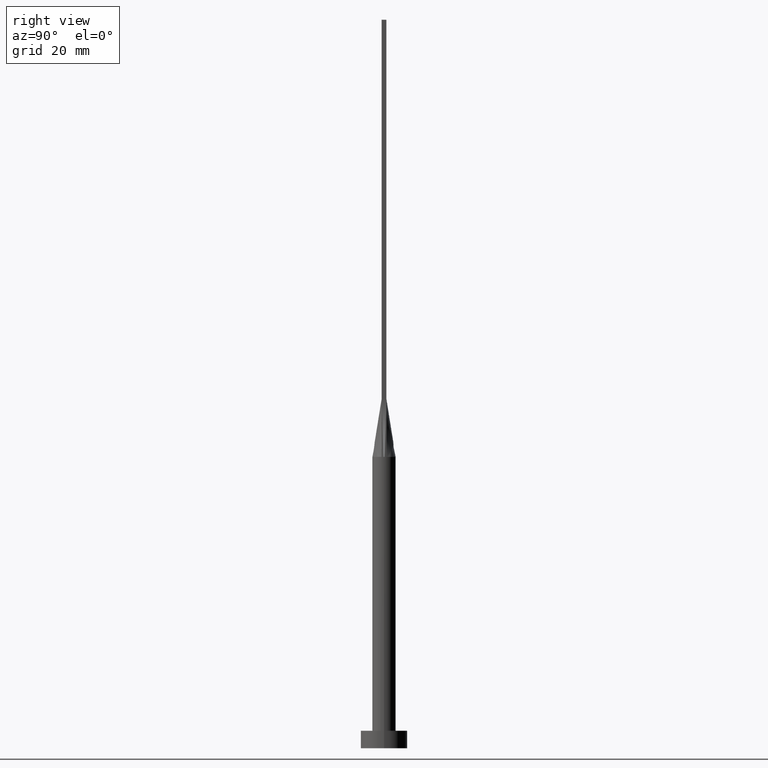
[diagram: clean part render]
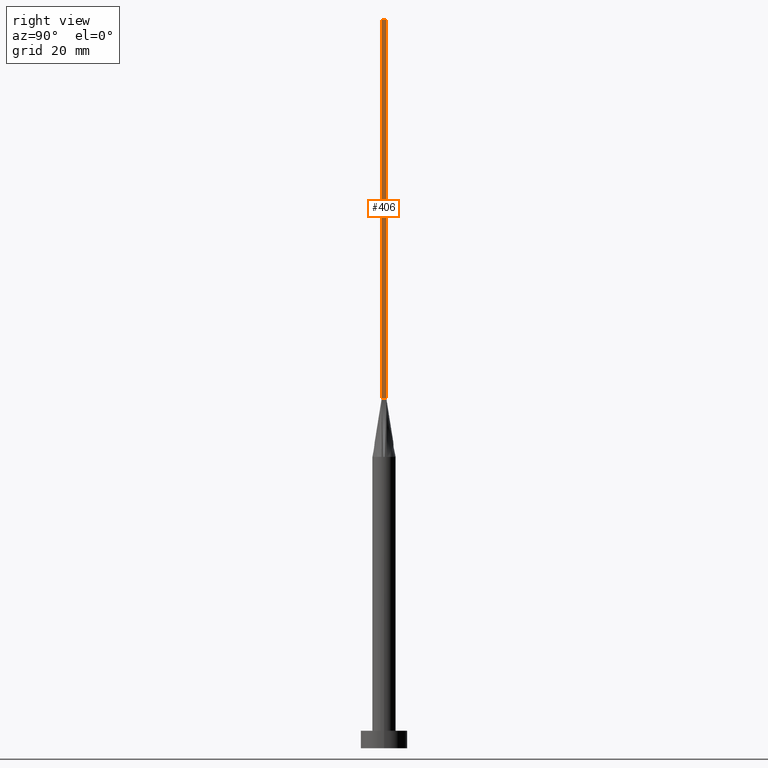
[diagram: same view with one face highlighted and labeled with its STEP entity id]
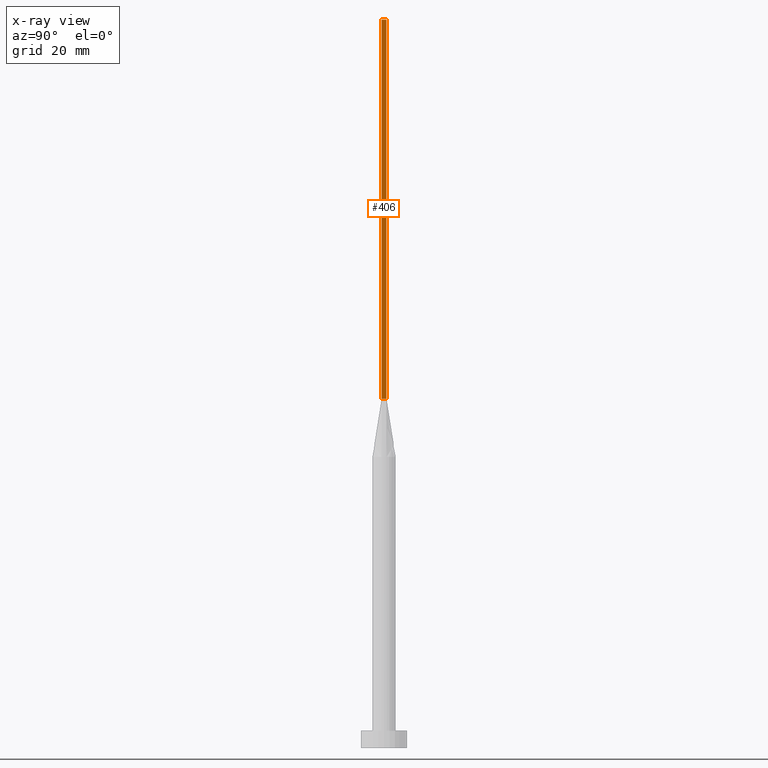
[diagram: x-ray of the same camera — body ghosted, the highlighted face saturated]
A machine part, right view. The second image highlights one B-rep face of the part: STEP entity #406.
The next image is the same camera in x-ray: the body ghosted, the highlighted face saturated — about 0% of this face is hidden behind the body in this view.
In plain terms, the highlighted planar face has unit normal (-1, -0, 0).
Its self-contained STEP definition (entity closure, byte-faithful):
#13 = ORIENTED_EDGE ( 'NONE', *, *, #127, .F. ) ;
#20 = ORIENTED_EDGE ( 'NONE', *, *, #318, .T. ) ;
#26 = VECTOR ( 'NONE', #576, 1000.000000000000000 ) ;
#86 = LINE ( 'NONE', #391, #26 ) ;
#97 = CARTESIAN_POINT ( 'NONE',  ( 1.749999999999999778, 0.4000000000000003553, 125.0000000000000000 ) ) ;
#123 = DIRECTION ( 'NONE',  ( -1.000000000000000000, -2.710505431213761085E-16, 0.000000000000000000 ) ) ;
#127 = EDGE_CURVE ( 'NONE', #335, #341, #135, .T. ) ;
#132 = CARTESIAN_POINT ( 'NONE',  ( 1.750000000000000000, -0.3999999999999996891, 60.00000000000000711 ) ) ;
#133 = DIRECTION ( 'NONE',  ( -2.710505431213761085E-16, 1.000000000000000000, -0.000000000000000000 ) ) ;
#135 = LINE ( 'NONE', #440, #304 ) ;
#144 = LINE ( 'NONE', #97, #393 ) ;
#160 = VERTEX_POINT ( 'NONE', #562 ) ;
#178 = DIRECTION ( 'NONE',  ( 2.710505431213761085E-16, -1.000000000000000000, 0.000000000000000000 ) ) ;
#259 = CARTESIAN_POINT ( 'NONE',  ( 1.750000000000000000, -0.3999999999999996891, 125.0000000000000000 ) ) ;
#261 = FACE_OUTER_BOUND ( 'NONE', #380, .T. ) ;
#274 = LINE ( 'NONE', #533, #469 ) ;
#298 = AXIS2_PLACEMENT_3D ( 'NONE', #532, #123, #178 ) ;
#304 = VECTOR ( 'NONE', #443, 1000.000000000000000 ) ;
#314 = ORIENTED_EDGE ( 'NONE', *, *, #525, .F. ) ;
#318 = EDGE_CURVE ( 'NONE', #335, #410, #86, .T. ) ;
#335 = VERTEX_POINT ( 'NONE', #259 ) ;
#341 = VERTEX_POINT ( 'NONE', #569 ) ;
#380 = EDGE_LOOP ( 'NONE', ( #452, #314, #13, #20 ) ) ;
#391 = CARTESIAN_POINT ( 'NONE',  ( 1.750000000000000000, -0.3999999999999996891, 125.0000000000000000 ) ) ;
#393 = VECTOR ( 'NONE', #480, 1000.000000000000000 ) ;
#406 = ADVANCED_FACE ( 'NONE', ( #261 ), #479, .F. ) ;
#410 = VERTEX_POINT ( 'NONE', #132 ) ;
#440 = CARTESIAN_POINT ( 'NONE',  ( 1.750000000000000000, -0.3999999999999996891, 125.0000000000000000 ) ) ;
#443 = DIRECTION ( 'NONE',  ( -2.710505431213761085E-16, 1.000000000000000000, 0.000000000000000000 ) ) ;
#452 = ORIENTED_EDGE ( 'NONE', *, *, #538, .T. ) ;
#469 = VECTOR ( 'NONE', #133, 1000.000000000000000 ) ;
#479 = PLANE ( 'NONE',  #298 ) ;
#480 = DIRECTION ( 'NONE',  ( -0.000000000000000000, -0.000000000000000000, -1.000000000000000000 ) ) ;
#525 = EDGE_CURVE ( 'NONE', #341, #160, #144, .T. ) ;
#532 = CARTESIAN_POINT ( 'NONE',  ( 1.750000000000000000, -0.3999999999999996891, 125.0000000000000000 ) ) ;
#533 = CARTESIAN_POINT ( 'NONE',  ( 1.749999999999999778, 0.4000000000000003553, 60.00000000000000711 ) ) ;
#538 = EDGE_CURVE ( 'NONE', #410, #160, #274, .T. ) ;
#562 = CARTESIAN_POINT ( 'NONE',  ( 1.749999999999999778, 0.4000000000000003553, 60.00000000000000711 ) ) ;
#569 = CARTESIAN_POINT ( 'NONE',  ( 1.749999999999999778, 0.4000000000000003553, 125.0000000000000000 ) ) ;
#576 = DIRECTION ( 'NONE',  ( -0.000000000000000000, -0.000000000000000000, -1.000000000000000000 ) ) ;